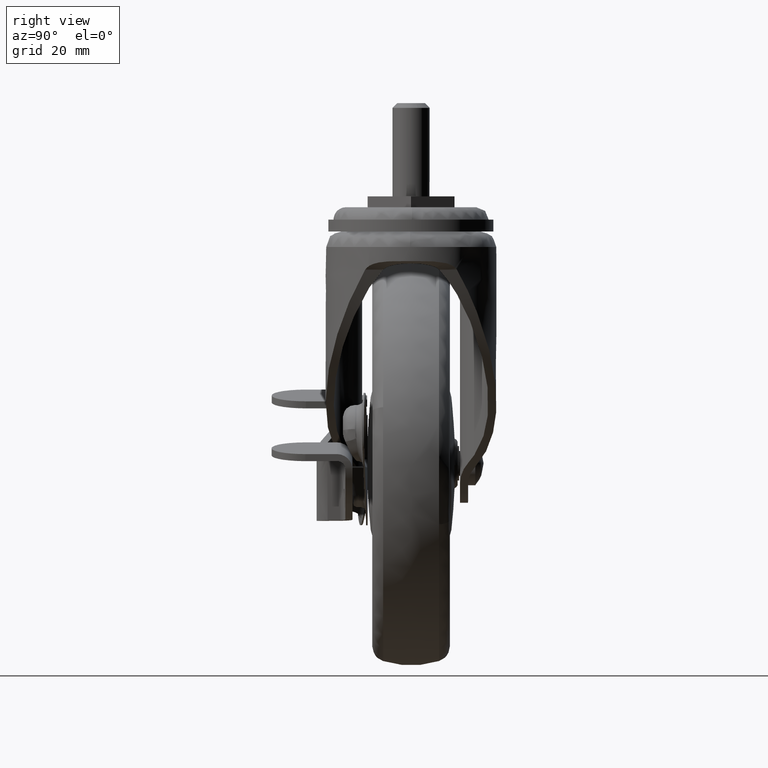
[diagram: clean part render]
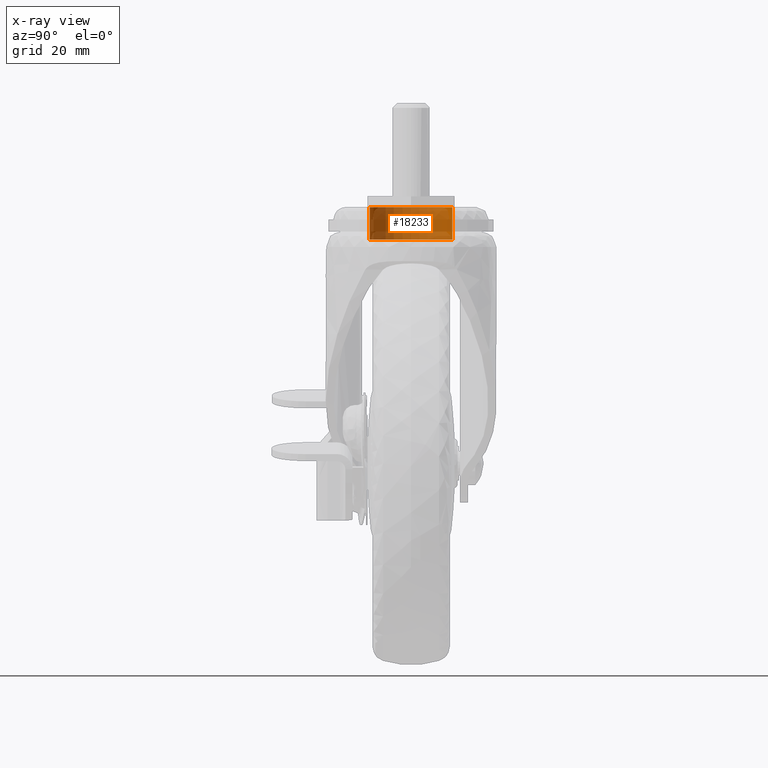
[diagram: x-ray — body ghosted, one internal face saturated and labeled with its STEP entity id]
A machine part, right view, then the same camera in x-ray: the body is ghosted and one INTERNAL B-rep face — a face not visible from any outside direction — is saturated and labeled: STEP entity #18233.
In plain terms, the highlighted face is a freeform B-spline surface patch.
Its self-contained STEP definition (entity closure, byte-faithful):
#18131=CARTESIAN_POINT('',(1.575757032667726,13.256677176954941,-13.175369150000105));
#18132=CARTESIAN_POINT('',(1.196356627317002,13.301774666238888,-13.175369150000101));
#18133=CARTESIAN_POINT('',(0.814998002790341,13.325099558931919,-13.175369150000099));
#18134=CARTESIAN_POINT('',(-12.510101556141580,14.140097561722262,-13.175369150000103));
#18135=CARTESIAN_POINT('',(-13.325099558931919,0.814998002790341,-13.175369150000099));
#18136=CARTESIAN_POINT('',(-14.140097561722262,-12.510101556141580,-13.175369150000103));
#18137=CARTESIAN_POINT('',(-0.814998002790341,-13.325099558931919,-13.175369150000099));
#18138=CARTESIAN_POINT('',(1.575757032667726,13.256677176954941,-2.232893346250090));
#18139=CARTESIAN_POINT('',(1.196356627317002,13.301774666238888,-2.232893346250089));
#18140=CARTESIAN_POINT('',(0.814998002790341,13.325099558931919,-2.232893346250089));
#18141=CARTESIAN_POINT('',(-12.510101556141580,14.140097561722262,-2.232893346250089));
#18142=CARTESIAN_POINT('',(-13.325099558931919,0.814998002790341,-2.232893346250089));
#18143=CARTESIAN_POINT('',(-14.140097561722262,-12.510101556141580,-2.232893346250089));
#18144=CARTESIAN_POINT('',(-0.814998002790341,-13.325099558931919,-2.232893346250089));
#18152=(BOUNDED_SURFACE()B_SPLINE_SURFACE(2,1,((#18131,#18138),(#18132,#18139),(#18133,#18140),(#18134,#18141),(#18135,#18142),(#18136,#18143),(#18137,#18144)),.UNSPECIFIED.,.F.,.F.,.U.)B_SPLINE_SURFACE_WITH_KNOTS((3,2,2,3),(2,2),(0.0,0.884760169228932,23.003764399952200,45.122768630675473),(0.0,10.942475803750019),.UNSPECIFIED.)GEOMETRIC_REPRESENTATION_ITEM()RATIONAL_B_SPLINE_SURFACE(((0.977505800795127,0.977505800795127),(0.988284271247462,0.988284271247462),(1.0,1.0),(0.707106781186548,0.707106781186548),(1.0,1.0),(0.707106781186548,0.707106781186548),(1.0,1.0)))REPRESENTATION_ITEM('')SURFACE());
#18153=CARTESIAN_POINT('',(1.575757032851170,13.256677176933140,-12.914989000000100));
#18154=VERTEX_POINT('',#18153);
#18155=CARTESIAN_POINT('',(-13.350000000000000,0.0,-12.914989000000100));
#18156=VERTEX_POINT('',#18155);
#18157=CARTESIAN_POINT('',(1.575757032851170,13.256677176933138,-12.914989000000096));
#18158=CARTESIAN_POINT('',(0.790641997538384,13.350000000000001,-12.914989000000098));
#18159=CARTESIAN_POINT('',(0.0,13.350000000000000,-12.914989000000100));
#18160=CARTESIAN_POINT('',(-13.350000000000000,13.350000000000000,-12.914989000000100));
#18161=CARTESIAN_POINT('',(-13.350000000000000,0.0,-12.914989000000100));
#18169=(BOUNDED_CURVE()B_SPLINE_CURVE(2,(#18157,#18158,#18159,#18160,#18161),.UNSPECIFIED.,.F.,.U.)B_SPLINE_CURVE_WITH_KNOTS((3,2,3),(0.729562473510967,0.750000000000000,1.0),.UNSPECIFIED.)CURVE()GEOMETRIC_REPRESENTATION_ITEM()RATIONAL_B_SPLINE_CURVE((0.956026754178718,0.976055948328168,1.0,0.707106781186548,1.0))REPRESENTATION_ITEM(''));
#18170=EDGE_CURVE('',#18154,#18156,#18169,.T.);
#18171=ORIENTED_EDGE('',*,*,#18170,.F.);
#18172=CARTESIAN_POINT('',(1.575757032851169,13.256677176933140,-2.499783000000091));
#18173=VERTEX_POINT('',#18172);
#18174=CARTESIAN_POINT('',(1.575757032851170,13.256677176933140,-12.914989000000100));
#18175=CARTESIAN_POINT('',(1.575757032851169,13.256677176933140,-2.499783000000091));
#18176=QUASI_UNIFORM_CURVE('',1,(#18174,#18175),.UNSPECIFIED.,.F.,.U.);
#18177=EDGE_CURVE('',#18154,#18173,#18176,.T.);
#18178=ORIENTED_EDGE('',*,*,#18177,.T.);
#18179=CARTESIAN_POINT('',(-13.350000000000000,0.0,-2.499783000000091));
#18180=VERTEX_POINT('',#18179);
#18181=CARTESIAN_POINT('',(1.575757032851168,13.256677176933138,-2.499783000000091));
#18182=CARTESIAN_POINT('',(0.790641997538383,13.350000000000001,-2.499783000000091));
#18183=CARTESIAN_POINT('',(0.0,13.350000000000000,-2.499783000000091));
#18184=CARTESIAN_POINT('',(-13.350000000000000,13.350000000000000,-2.499783000000090));
#18185=CARTESIAN_POINT('',(-13.350000000000000,0.0,-2.499783000000091));
#18193=(BOUNDED_CURVE()B_SPLINE_CURVE(2,(#18181,#18182,#18183,#18184,#18185),.UNSPECIFIED.,.F.,.U.)B_SPLINE_CURVE_WITH_KNOTS((3,2,3),(0.229562473510967,0.250000000000000,0.500000000000000),.UNSPECIFIED.)CURVE()GEOMETRIC_REPRESENTATION_ITEM()RATIONAL_B_SPLINE_CURVE((0.956026754178718,0.976055948328168,1.0,0.707106781186548,1.0))REPRESENTATION_ITEM(''));
#18194=EDGE_CURVE('',#18173,#18180,#18193,.T.);
#18195=ORIENTED_EDGE('',*,*,#18194,.T.);
#18196=CARTESIAN_POINT('',(-0.814998003082326,-13.325099558914070,-2.499783000000091));
#18197=VERTEX_POINT('',#18196);
#18198=CARTESIAN_POINT('',(-13.350000000000000,0.0,-2.499783000000091));
#18199=CARTESIAN_POINT('',(-13.350000000000001,-12.558425992639629,-2.499783000000090));
#18200=CARTESIAN_POINT('',(-0.814998003082326,-13.325099558914067,-2.499783000000091));
#18208=(BOUNDED_CURVE()B_SPLINE_CURVE(2,(#18198,#18199,#18200),.UNSPECIFIED.,.F.,.U.)B_SPLINE_CURVE_WITH_KNOTS((3,3),(0.500000000000000,0.739332962234406),.UNSPECIFIED.)CURVE()GEOMETRIC_REPRESENTATION_ITEM()RATIONAL_B_SPLINE_CURVE((1.0,0.719603993292025,0.976072041656995))REPRESENTATION_ITEM(''));
#18209=EDGE_CURVE('',#18180,#18197,#18208,.T.);
#18210=ORIENTED_EDGE('',*,*,#18209,.T.);
#18211=CARTESIAN_POINT('',(-0.814998003082326,-13.325099558914070,-12.914989000000100));
#18212=VERTEX_POINT('',#18211);
#18213=CARTESIAN_POINT('',(-0.814998003082326,-13.325099558914070,-12.914989000000100));
#18214=CARTESIAN_POINT('',(-0.814998003082326,-13.325099558914070,-2.499783000000091));
#18215=QUASI_UNIFORM_CURVE('',1,(#18213,#18214),.UNSPECIFIED.,.F.,.U.);
#18216=EDGE_CURVE('',#18212,#18197,#18215,.T.);
#18217=ORIENTED_EDGE('',*,*,#18216,.F.);
#18218=CARTESIAN_POINT('',(-13.350000000000000,0.0,-12.914989000000100));
#18219=CARTESIAN_POINT('',(-13.350000000000001,-12.558425992639629,-12.914989000000102));
#18220=CARTESIAN_POINT('',(-0.814998003082326,-13.325099558914067,-12.914989000000098));
#18228=(BOUNDED_CURVE()B_SPLINE_CURVE(2,(#18218,#18219,#18220),.UNSPECIFIED.,.F.,.U.)B_SPLINE_CURVE_WITH_KNOTS((3,3),(0.0,0.239332962234407),.UNSPECIFIED.)CURVE()GEOMETRIC_REPRESENTATION_ITEM()RATIONAL_B_SPLINE_CURVE((1.0,0.719603993292025,0.976072041656995))REPRESENTATION_ITEM(''));
#18229=EDGE_CURVE('',#18156,#18212,#18228,.T.);
#18230=ORIENTED_EDGE('',*,*,#18229,.F.);
#18231=EDGE_LOOP('',(#18171,#18178,#18195,#18210,#18217,#18230));
#18232=FACE_OUTER_BOUND('',#18231,.T.);
#18233=ADVANCED_FACE('',(#18232),#18152,.F.);